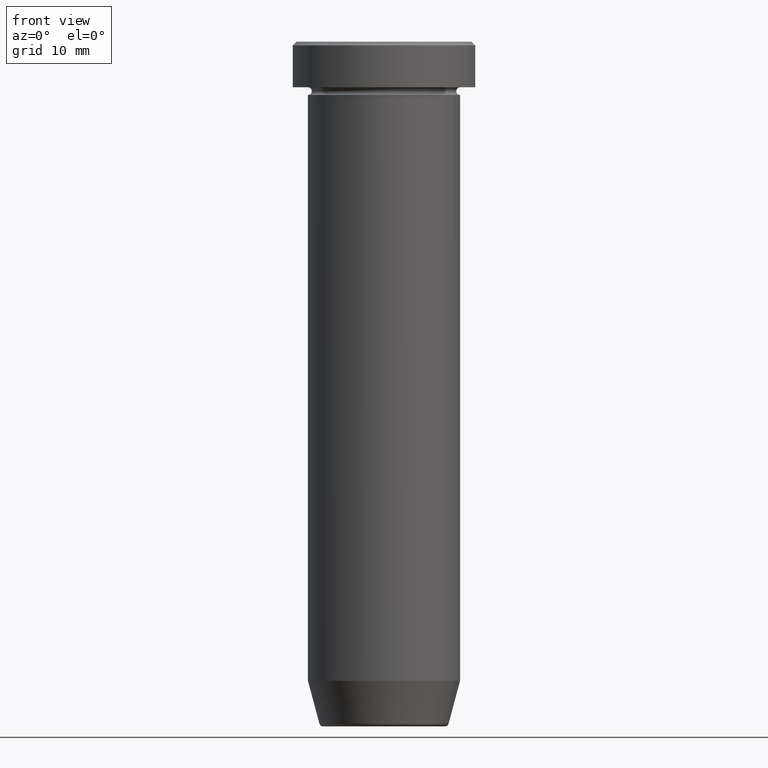
[diagram: clean part render]
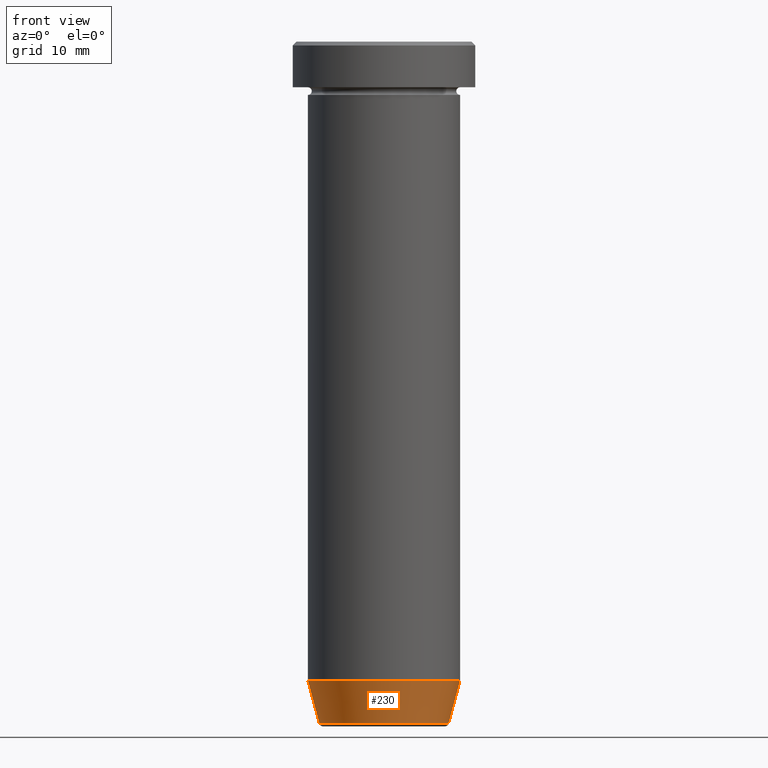
[diagram: same view with one face highlighted and labeled with its STEP entity id]
A machine part, front view. The second image highlights one B-rep face of the part: STEP entity #230.
In plain terms, the highlighted conical surface has half-angle 15 deg.
Its self-contained STEP definition (entity closure, byte-faithful):
#16 = LINE ( 'NONE', #569, #39 ) ;
#20 = CONICAL_SURFACE ( 'NONE', #116, 8.392304845413260495, 0.2617993877991495744 ) ;
#39 = VECTOR ( 'NONE', #235, 1000.000000000000000 ) ;
#48 = DIRECTION ( 'NONE',  ( -0.000000000000000000, -0.000000000000000000, 1.000000000000000000 ) ) ;
#104 = AXIS2_PLACEMENT_3D ( 'NONE', #300, #48, #249 ) ;
#105 = EDGE_CURVE ( 'NONE', #503, #208, #541, .T. ) ;
#114 = ORIENTED_EDGE ( 'NONE', *, *, #194, .T. ) ;
#116 = AXIS2_PLACEMENT_3D ( 'NONE', #384, #199, #557 ) ;
#149 = DIRECTION ( 'NONE',  ( 1.000000000000000000, 0.000000000000000000, 0.000000000000000000 ) ) ;
#157 = CIRCLE ( 'NONE', #104, 8.491604264568310967 ) ;
#159 = ORIENTED_EDGE ( 'NONE', *, *, #272, .F. ) ;
#168 = CARTESIAN_POINT ( 'NONE',  ( -8.491604264568310967, 1.132284198685156190E-15, -89.62940952255124216 ) ) ;
#181 = ORIENTED_EDGE ( 'NONE', *, *, #105, .F. ) ;
#190 = ORIENTED_EDGE ( 'NONE', *, *, #357, .T. ) ;
#193 = DIRECTION ( 'NONE',  ( -0.000000000000000000, -0.000000000000000000, 1.000000000000000000 ) ) ;
#194 = EDGE_CURVE ( 'NONE', #528, #252, #157, .T. ) ;
#199 = DIRECTION ( 'NONE',  ( -0.000000000000000000, -0.000000000000000000, 1.000000000000000000 ) ) ;
#208 = VERTEX_POINT ( 'NONE', #380 ) ;
#230 = ADVANCED_FACE ( 'NONE', ( #241 ), #20, .T. ) ;
#235 = DIRECTION ( 'NONE',  ( -0.2588190451025209060, 3.169619151431766790E-17, 0.9659258262890682012 ) ) ;
#241 = FACE_OUTER_BOUND ( 'NONE', #499, .T. ) ;
#249 = DIRECTION ( 'NONE',  ( -1.000000000000000000, 0.000000000000000000, 0.000000000000000000 ) ) ;
#252 = VERTEX_POINT ( 'NONE', #287 ) ;
#272 = EDGE_CURVE ( 'NONE', #528, #503, #16, .T. ) ;
#287 = CARTESIAN_POINT ( 'NONE',  ( 8.491604264568310967, 0.000000000000000000, -89.62940952255124216 ) ) ;
#289 = CARTESIAN_POINT ( 'NONE',  ( 8.392304845413260495, 0.000000000000000000, -90.00000000000000000 ) ) ;
#300 = CARTESIAN_POINT ( 'NONE',  ( 0.000000000000000000, 0.000000000000000000, -89.62940952255124216 ) ) ;
#308 = VECTOR ( 'NONE', #471, 1000.000000000000000 ) ;
#357 = EDGE_CURVE ( 'NONE', #252, #208, #516, .T. ) ;
#358 = CARTESIAN_POINT ( 'NONE',  ( -9.999999999999998224, 1.224646799147353059E-15, -83.99999999999998579 ) ) ;
#380 = CARTESIAN_POINT ( 'NONE',  ( 9.999999999999998224, 0.000000000000000000, -83.99999999999998579 ) ) ;
#384 = CARTESIAN_POINT ( 'NONE',  ( 0.000000000000000000, 0.000000000000000000, -90.00000000000000000 ) ) ;
#426 = CARTESIAN_POINT ( 'NONE',  ( 0.000000000000000000, 0.000000000000000000, -83.99999999999998579 ) ) ;
#471 = DIRECTION ( 'NONE',  ( 0.2588190451025209060, 0.000000000000000000, 0.9659258262890682012 ) ) ;
#499 = EDGE_LOOP ( 'NONE', ( #159, #114, #190, #181 ) ) ;
#503 = VERTEX_POINT ( 'NONE', #358 ) ;
#516 = LINE ( 'NONE', #289, #308 ) ;
#528 = VERTEX_POINT ( 'NONE', #168 ) ;
#533 = AXIS2_PLACEMENT_3D ( 'NONE', #426, #193, #149 ) ;
#541 = CIRCLE ( 'NONE', #533, 9.999999999999998224 ) ;
#557 = DIRECTION ( 'NONE',  ( 1.000000000000000000, 0.000000000000000000, 0.000000000000000000 ) ) ;
#569 = CARTESIAN_POINT ( 'NONE',  ( -8.392304845413260495, 1.027760926640417114E-15, -90.00000000000000000 ) ) ;